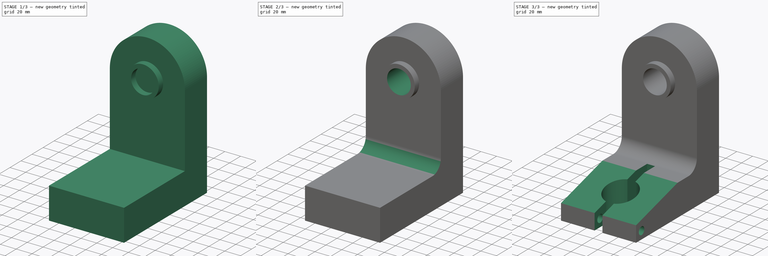
[diagram: build sequence overview — one tinted view per stage of 3, left to right]
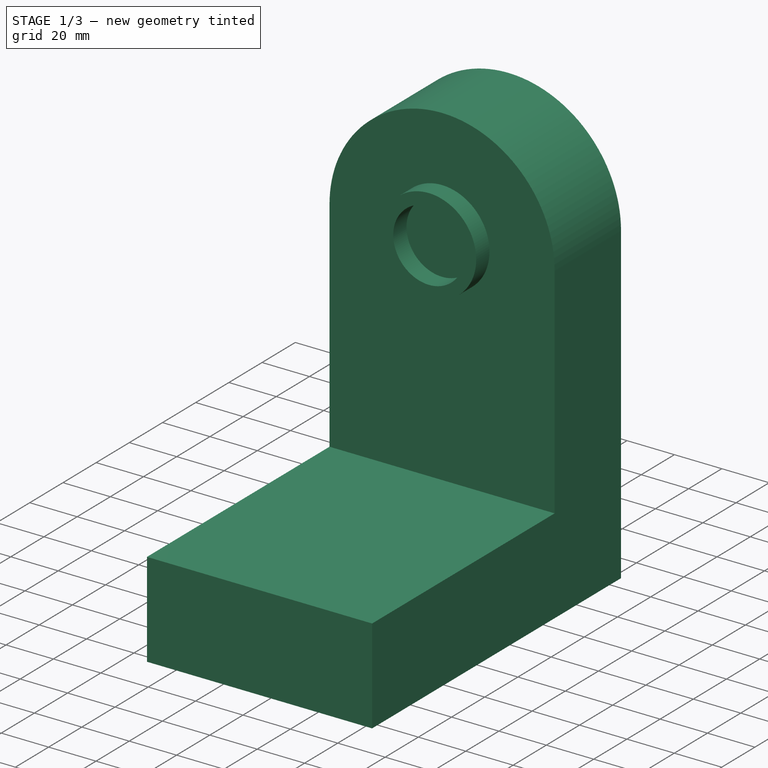
[diagram: stage 1 of 3 — iso view after this stage's code; geometry added in this stage tinted green]
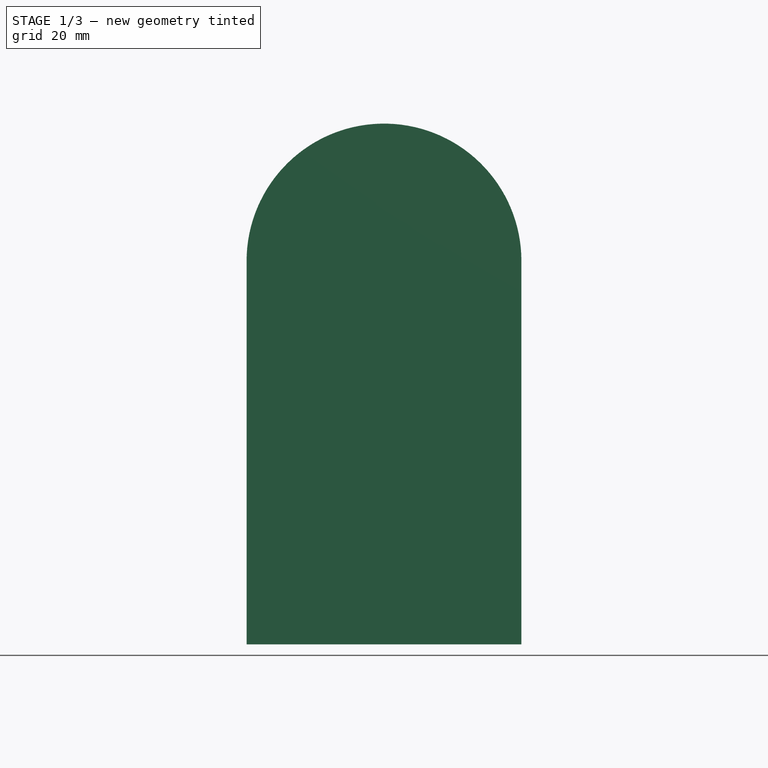
[diagram: stage 1 of 3 — front view after this stage's code; geometry added in this stage tinted green]
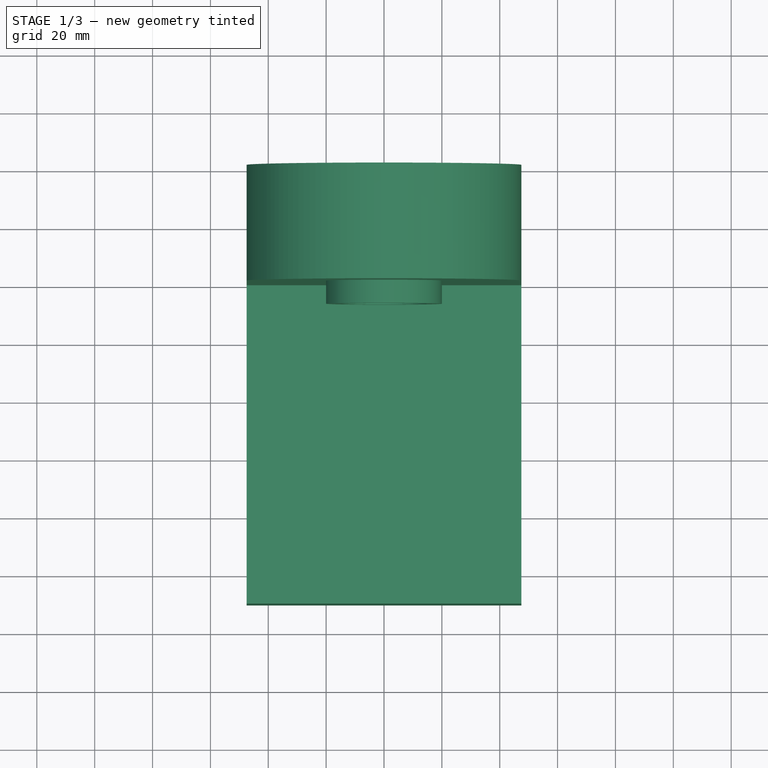
[diagram: stage 1 of 3 — top view after this stage's code; geometry added in this stage tinted green]
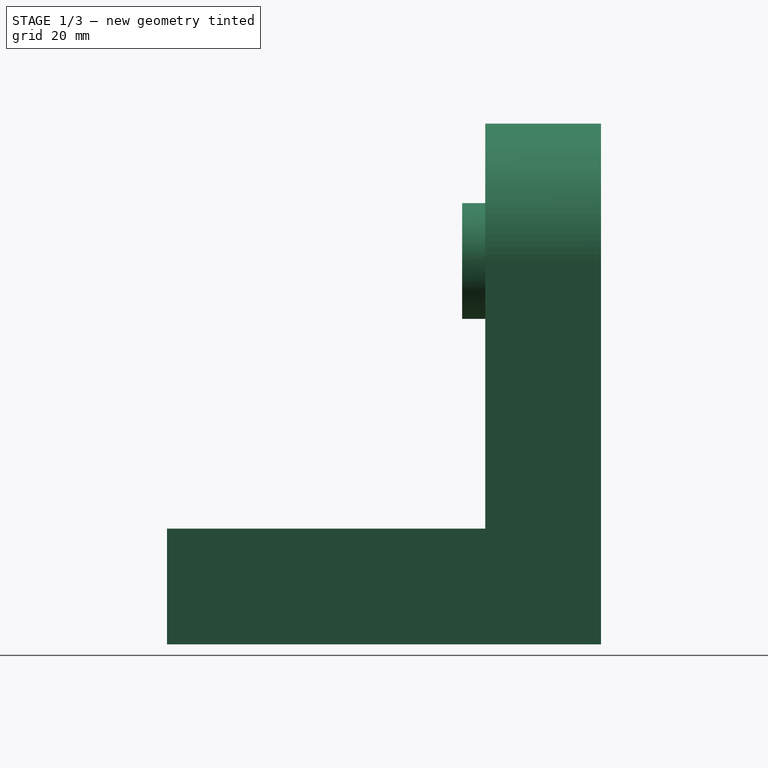
[diagram: stage 1 of 3 — right view after this stage's code; geometry added in this stage tinted green]
FCSTD DOCUMENT  (FreeCAD 0.16R)
Label: Ejer final 25
License: All rights reserved
LicenseURL: http://en.wikipedia.org/wiki/All_rights_reserved
objects: Sketcher::SketchObject×7, PartDesign::Pocket×4, PartDesign::Pad×3, PartDesign::Fillet×1
note: 22 computed .brp shape members not serialized (recipe doc carries the construction recipe); baked Part::Feature solids carry a one-line shape summary decoded from their .brp

FEATURE [Sketcher::SketchObject] Sketch
  Placement = pos=(0,0,0) rot=(-1,0,0;4.71239rad)
  sketch-geometry (4):
    g0: LineSegment StartX=47.5 StartY=132.5 StartZ=0 EndX=47.5 EndY=0 EndZ=0
    g1: LineSegment StartX=47.5 StartY=0 StartZ=0 EndX=-47.5 EndY=0 EndZ=0
    g2: LineSegment StartX=-47.5 StartY=0 StartZ=0 EndX=-47.5 EndY=132.5 EndZ=0
    g3: ArcOfCircle CenterX=0 CenterY=132.5 CenterZ=0 NormalX=0 NormalY=0 NormalZ=1 Radius=47.5 StartAngle=6.28318 EndAngle=9.42478
  constraints (13):
    c: Coincident(g0,g1)
    c: Coincident(g1,g2)
    c: Horizontal(g1)
    c: Vertical(g0)
    c: Vertical(g2)
    c: DistanceX(g1,g1) = 95
    c: Symmetric(g1,g0,g-2)
    c: PointOnObject(g-1,g1)
    c: Coincident(g3,g0)
    c: Coincident(g3,g2)
    c: PointOnObject(g3,g-2)
    c: DistanceY(g-1,g3) = 132.5
    c: Tangent(g0,g3)
FEATURE [PartDesign::Pad] Pad
  Length = 40
  Length2 = 100
  Placement = pos=(0,0,0) rot=(-1,0,0;4.71239rad)
  Sketch = -> Sketch
  Type = 0
FEATURE [Sketcher::SketchObject] Sketch001
  ExternalGeometry = -> [Pad]
  Placement = pos=(0,-40,0) rot=(1,0,0;1.5708rad)
  Support = -> Pad [Face6]
  sketch-geometry (4):
    g0: LineSegment StartX=-47.5 StartY=0 StartZ=0 EndX=47.5 EndY=0 EndZ=0
    g1: LineSegment StartX=47.5 StartY=0 StartZ=0 EndX=47.5 EndY=40 EndZ=0
    g2: LineSegment StartX=47.5 StartY=40 StartZ=0 EndX=-47.5 EndY=40 EndZ=0
    g3: LineSegment StartX=-47.5 StartY=40 StartZ=0 EndX=-47.5 EndY=0 EndZ=0
  constraints (11):
    c: Coincident(g0,g1)
    c: Coincident(g1,g2)
    c: Coincident(g2,g3)
    c: Coincident(g3,g0)
    c: Horizontal(g0)
    c: Horizontal(g2)
    c: Vertical(g1)
    c: Vertical(g3)
    c: Coincident(g0,g-3)
    c: Coincident(g0,g-4)
    c: DistanceY(g0,g1) = 40
FEATURE [PartDesign::Pad] Pad001
  Length = 110
  Length2 = 100
  Placement = pos=(0,0,0) rot=(-1,0,0;4.71239rad)
  Sketch = -> Sketch001
  Type = 0
FEATURE [Sketcher::SketchObject] Sketch002
  ExternalGeometry = -> [Pad001]
  Placement = pos=(0,-40,0) rot=(1,0,0;1.5708rad)
  Support = -> Pad001 [Face3]
  sketch-geometry (2):
    g0: Circle CenterX=0 CenterY=132.5 CenterZ=0 NormalX=0 NormalY=0 NormalZ=1 Radius=20
    g1: Circle CenterX=0 CenterY=132.5 CenterZ=0 NormalX=0 NormalY=0 NormalZ=1 Radius=15
  constraints (4):
    c: Coincident(g0,g-3)
    c: Coincident(g1,g0)
    c: Radius(g0) = 20
    c: Radius(g1) = 15
FEATURE [PartDesign::Pad] Pad002
  Length = 8
  Length2 = 100
  Placement = pos=(0,0,0) rot=(-1,0,0;4.71239rad)
  Sketch = -> Sketch002
  Type = 0
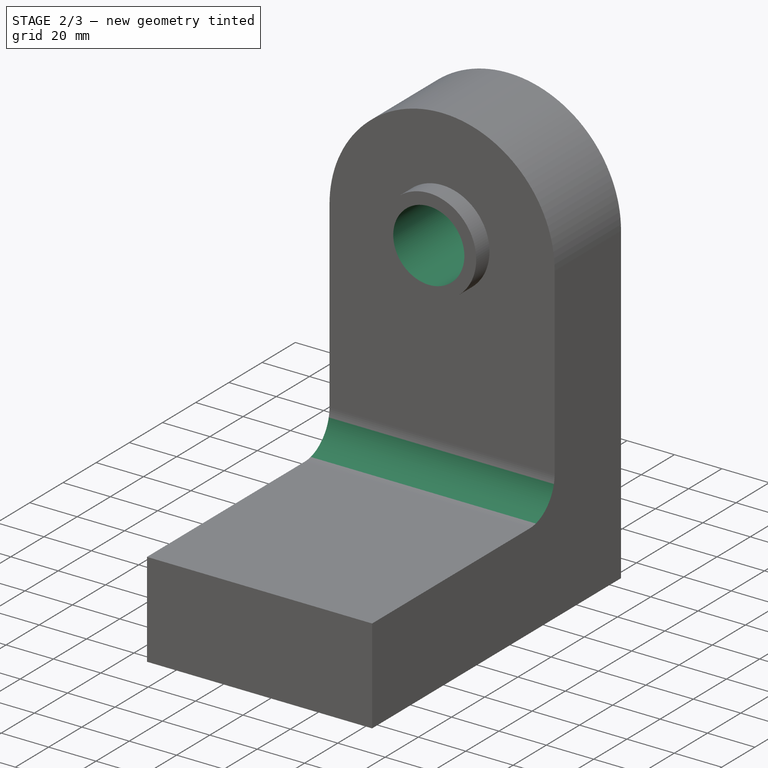
[diagram: stage 2 of 3 — iso view after this stage's code; geometry added in this stage tinted green]
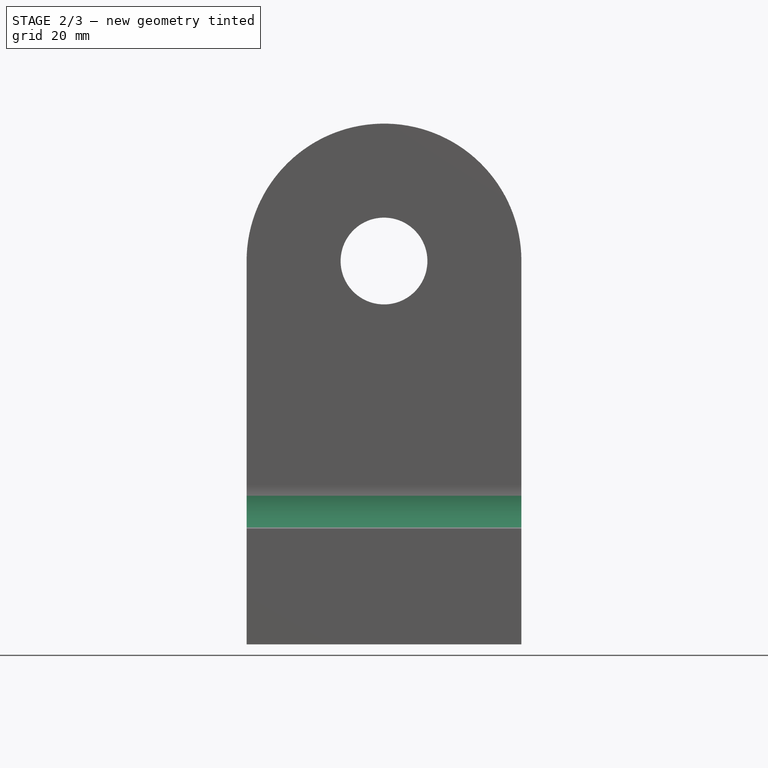
[diagram: stage 2 of 3 — front view after this stage's code; geometry added in this stage tinted green]
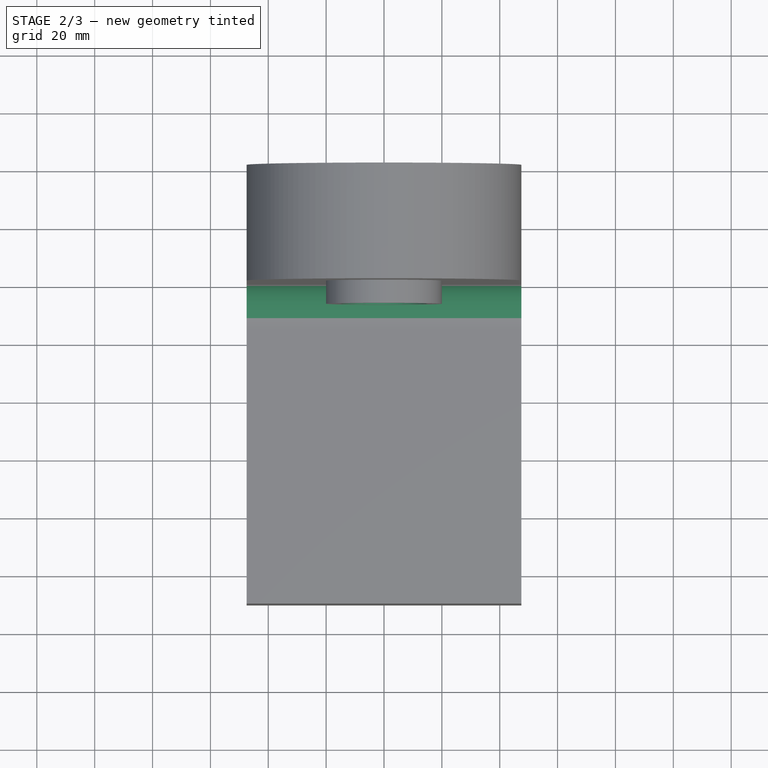
[diagram: stage 2 of 3 — top view after this stage's code; geometry added in this stage tinted green]
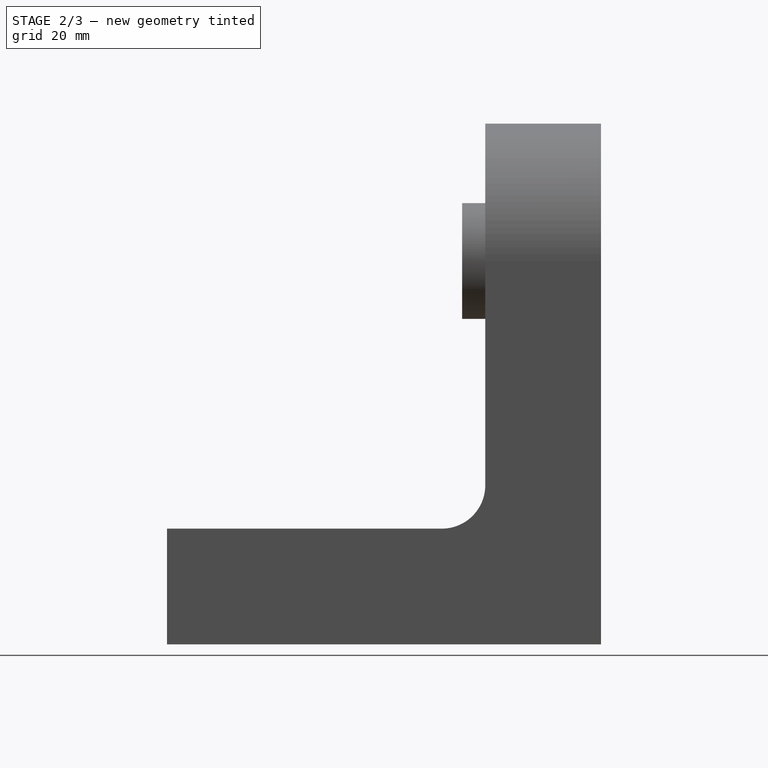
[diagram: stage 2 of 3 — right view after this stage's code; geometry added in this stage tinted green]
FEATURE [Sketcher::SketchObject] Sketch003
  ExternalGeometry = -> [Pad002]
  Placement = pos=(0,-40,0) rot=(1,0,0;1.5708rad)
  Support = -> Pad002 [Face12]
  sketch-geometry (1):
    g0: Circle CenterX=0 CenterY=132.5 CenterZ=0 NormalX=0 NormalY=0 NormalZ=1 Radius=15
  constraints (2):
    c: Coincident(g0,g-3)
    c: Radius(g0) = 15
FEATURE [PartDesign::Pocket] Pocket
  Length = 5
  Placement = pos=(0,0,0) rot=(-1,0,0;4.71239rad)
  Sketch = -> Sketch003
  Type = 1
FEATURE [PartDesign::Fillet] Fillet
  Base = -> Pocket [Edge17]
  Placement = pos=(0,0,0) rot=(-1,0,0;4.71239rad)
  Radius = 15
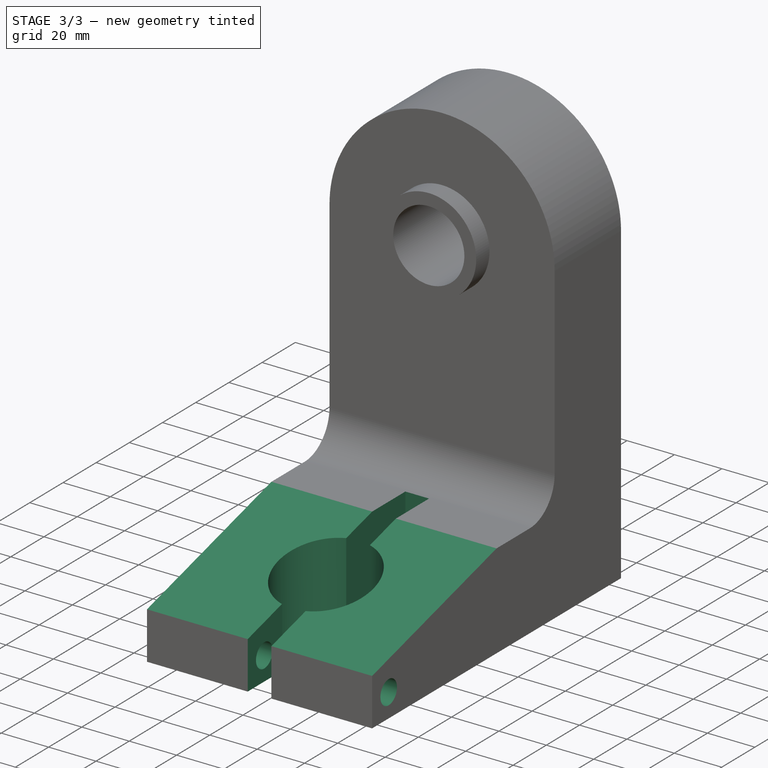
[diagram: stage 3 of 3 — iso view after this stage's code; geometry added in this stage tinted green]
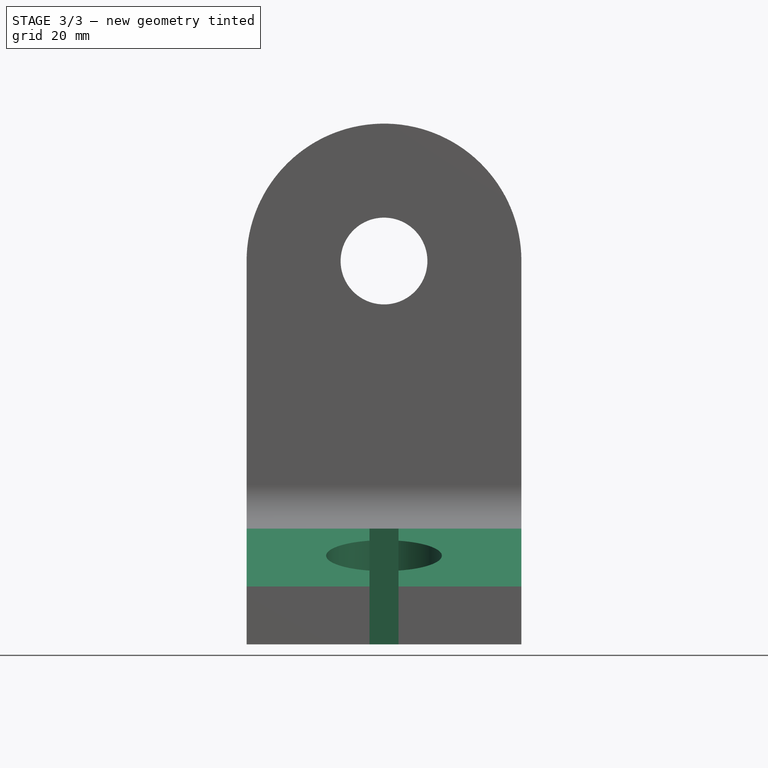
[diagram: stage 3 of 3 — front view after this stage's code; geometry added in this stage tinted green]
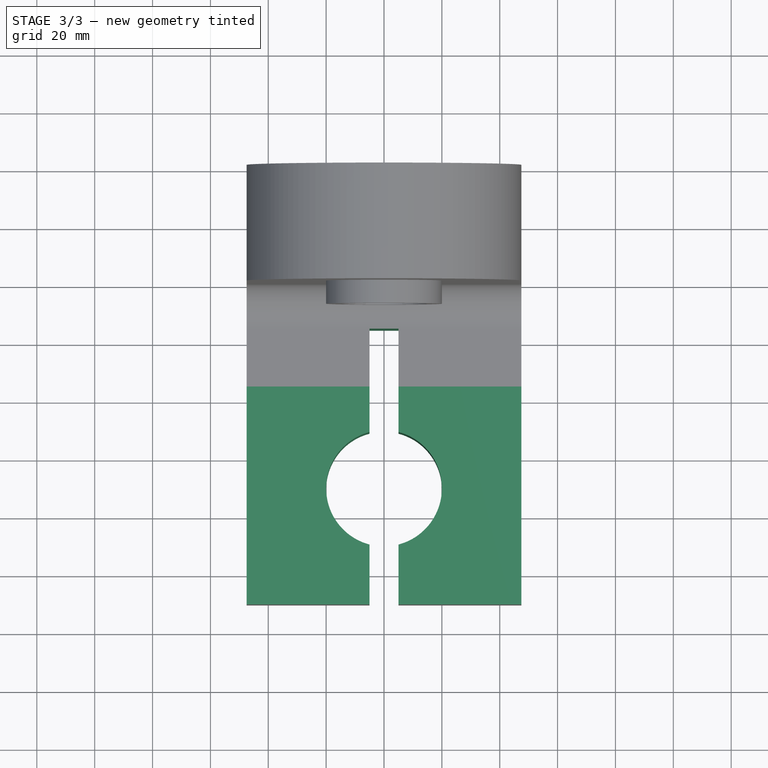
[diagram: stage 3 of 3 — top view after this stage's code; geometry added in this stage tinted green]
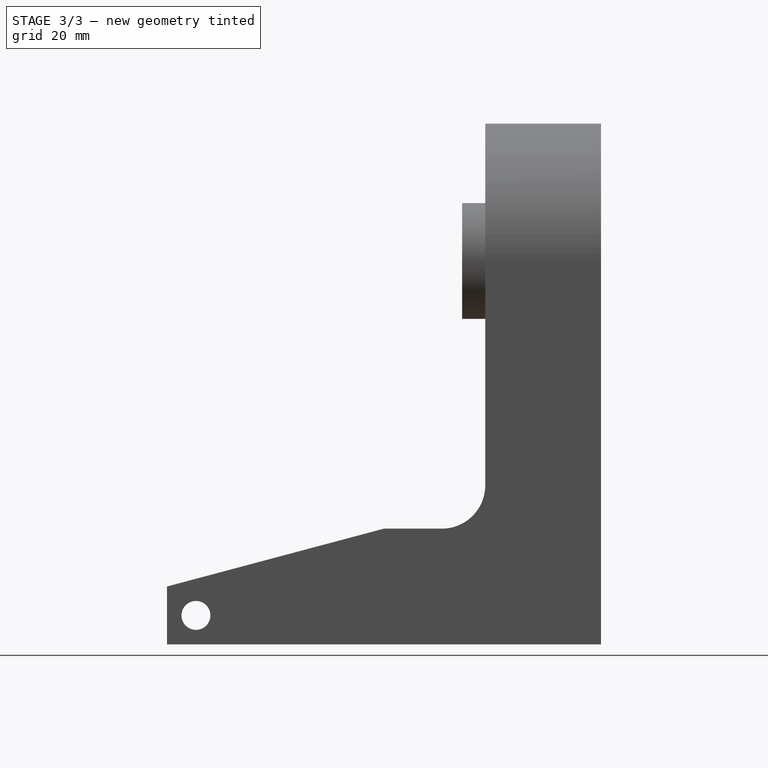
[diagram: stage 3 of 3 — right view after this stage's code; geometry added in this stage tinted green]
FEATURE [Sketcher::SketchObject] Sketch004
  ExternalGeometry = -> [Fillet]
  Placement = pos=(0,0,40) rot=(0,0,1;3.14159rad)
  Support = -> Fillet [Face5]
  sketch-geometry (8):
    g0: ArcOfCircle CenterX=0 CenterY=110 CenterZ=0 NormalX=0 NormalY=0 NormalZ=1 Radius=20 StartAngle=1.82348 EndAngle=4.45971
    g1: LineSegment StartX=5 StartY=129.365 StartZ=0 EndX=5 EndY=150 EndZ=0
    g2: LineSegment StartX=5 StartY=150 StartZ=0 EndX=-5 EndY=150 EndZ=0
    g3: LineSegment StartX=-5 StartY=150 StartZ=0 EndX=-5 EndY=129.365 EndZ=0
    g4: LineSegment StartX=5 StartY=90.6351 StartZ=0 EndX=5 EndY=55 EndZ=0
    g5: LineSegment StartX=5 StartY=55 StartZ=0 EndX=-5 EndY=55 EndZ=0
    g6: LineSegment StartX=-5 StartY=55 StartZ=0 EndX=-5 EndY=90.6351 EndZ=0
    g7: ArcOfCircle CenterX=0 CenterY=110 CenterZ=0 NormalX=0 NormalY=0 NormalZ=1 Radius=20 StartAngle=4.96507 EndAngle=7.6013
  constraints (22):
    c: Radius(g0) = 20
    c: PointOnObject(g1,g-3)
    c: Coincident(g1,g2)
    c: PointOnObject(g2,g-3)
    c: Coincident(g2,g3)
    c: Vertical(g4)
    c: Coincident(g4,g5)
    c: Coincident(g5,g6)
    c: Vertical(g6)
    c: Vertical(g3)
    c: Vertical(g1)
    c: Horizontal(g5)
    c: DistanceX(g2,g1) = 10
    c: DistanceX(g5,g4) = 10
    c: DistanceY(g0,g-3) = 40
    c: DistanceY(g5,g-3) = 95
    c: Coincident(g0,g3)
    c: Coincident(g7,g1)
    c: Equal(g0,g7)
    c: Coincident(g0,g6)
    c: Coincident(g7,g4)
    c: Coincident(g0,g7)
FEATURE [PartDesign::Pocket] Pocket001
  Length = 5
  Placement = pos=(0,0,0) rot=(-1,0,0;4.71239rad)
  Sketch = -> Sketch004
  Type = 1
FEATURE [Sketcher::SketchObject] Sketch005
  ExternalGeometry = -> [Pocket001]
  Placement = pos=(47.5,0,0) rot=(0.707107,0,0.707107;3.14159rad)
  Support = -> Pocket001 [Face1]
  sketch-geometry (3):
    g0: LineSegment StartX=40 StartY=150 StartZ=0 EndX=20 EndY=150 EndZ=0
    g1: LineSegment StartX=40 StartY=150 StartZ=0 EndX=40 EndY=75 EndZ=0
    g2: LineSegment StartX=20 StartY=150 StartZ=0 EndX=40 EndY=75 EndZ=0
  constraints (8):
    c: Horizontal(g0)
    c: Vertical(g1)
    c: DistanceX(g0,g0) = 20
    c: DistanceY(g1,g1) = 75
    c: Coincident(g0,g-4)
    c: Coincident(g1,g0)
    c: Coincident(g2,g0)
    c: Coincident(g2,g1)
FEATURE [PartDesign::Pocket] Pocket002
  Length = 5
  Placement = pos=(0,0,0) rot=(-1,0,0;4.71239rad)
  Sketch = -> Sketch005
  Type = 1
FEATURE [Sketcher::SketchObject] Sketch006
  ExternalGeometry = -> [Pocket002]
  Placement = pos=(47.5,0,0) rot=(0.707107,0,0.707107;3.14159rad)
  Support = -> Pocket002 [Face1]
  sketch-geometry (1):
    g0: Circle CenterX=10 CenterY=140 CenterZ=0 NormalX=0 NormalY=0 NormalZ=1 Radius=5
  constraints (3):
    c: DistanceX(g-3,g0) = 10
    c: DistanceY(g0,g-3) = 10
    c: Radius(g0) = 5
FEATURE [PartDesign::Pocket] Pocket003
  Length = 5
  Placement = pos=(0,0,0) rot=(-1,0,0;4.71239rad)
  Sketch = -> Sketch006
  Type = 1
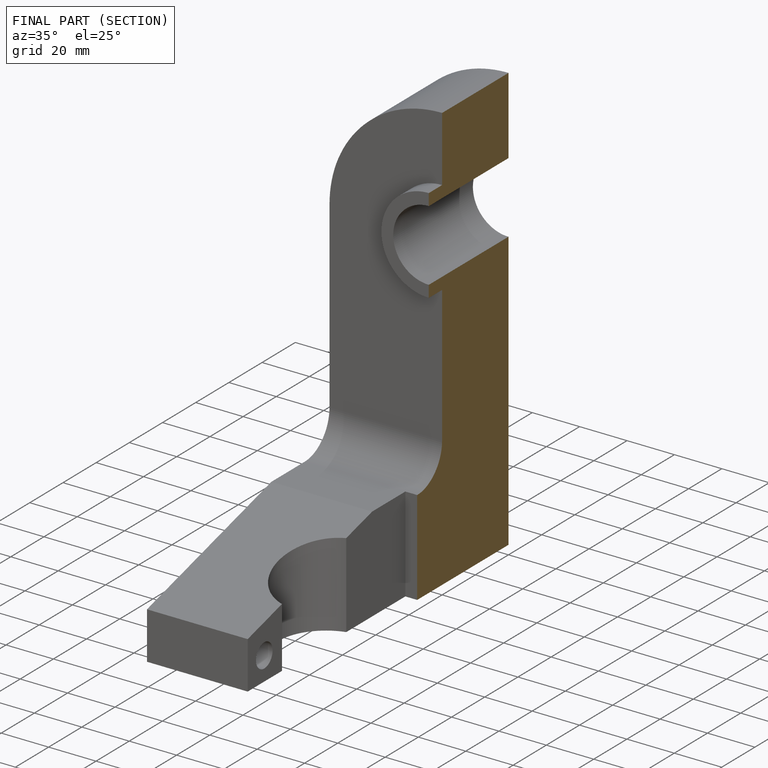
[diagram: finished part — half-section view (interior)]
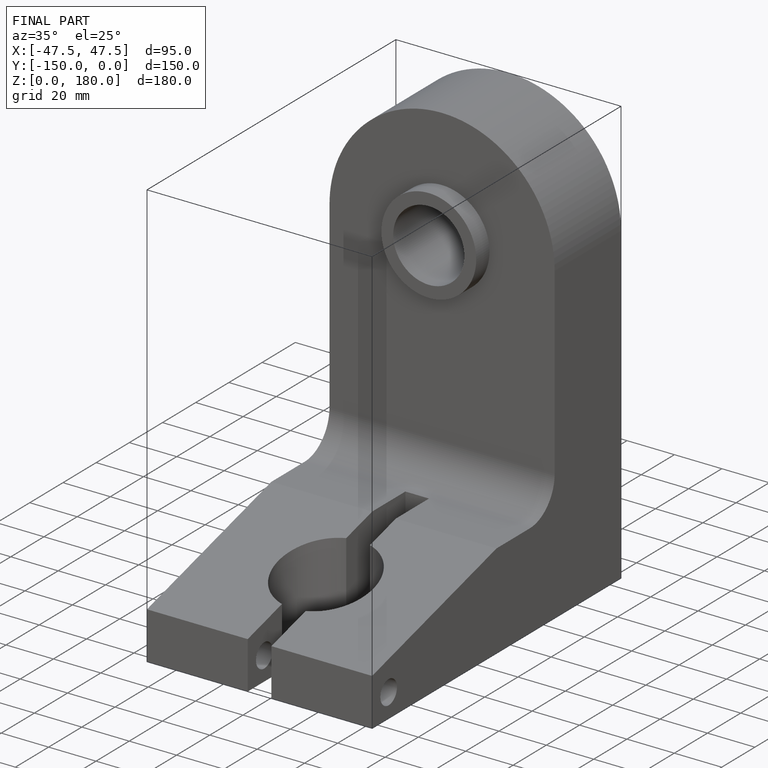
[diagram: finished part — iso view with bounding-box wireframe]
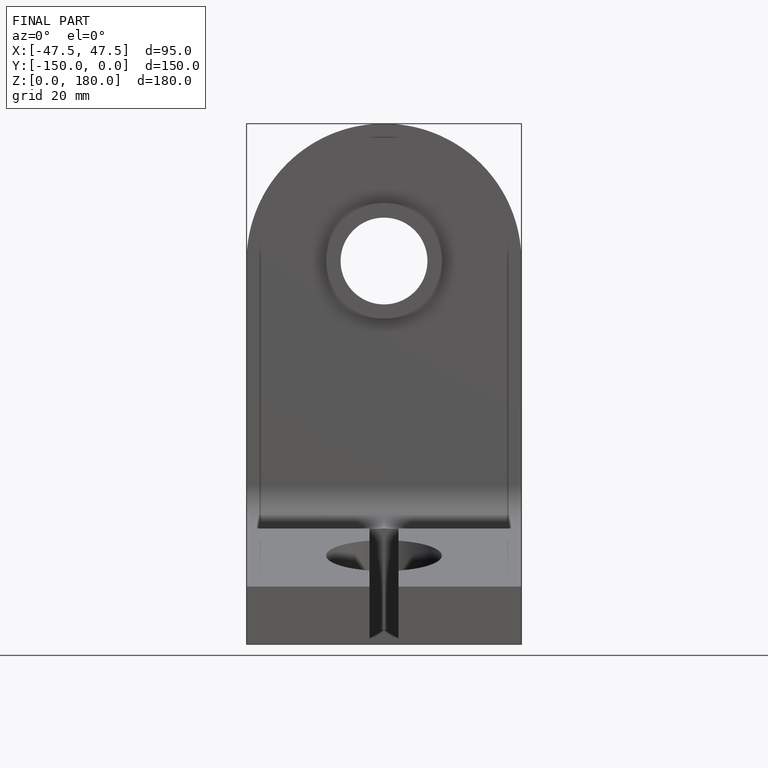
[diagram: finished part — front view with bounding-box wireframe]
